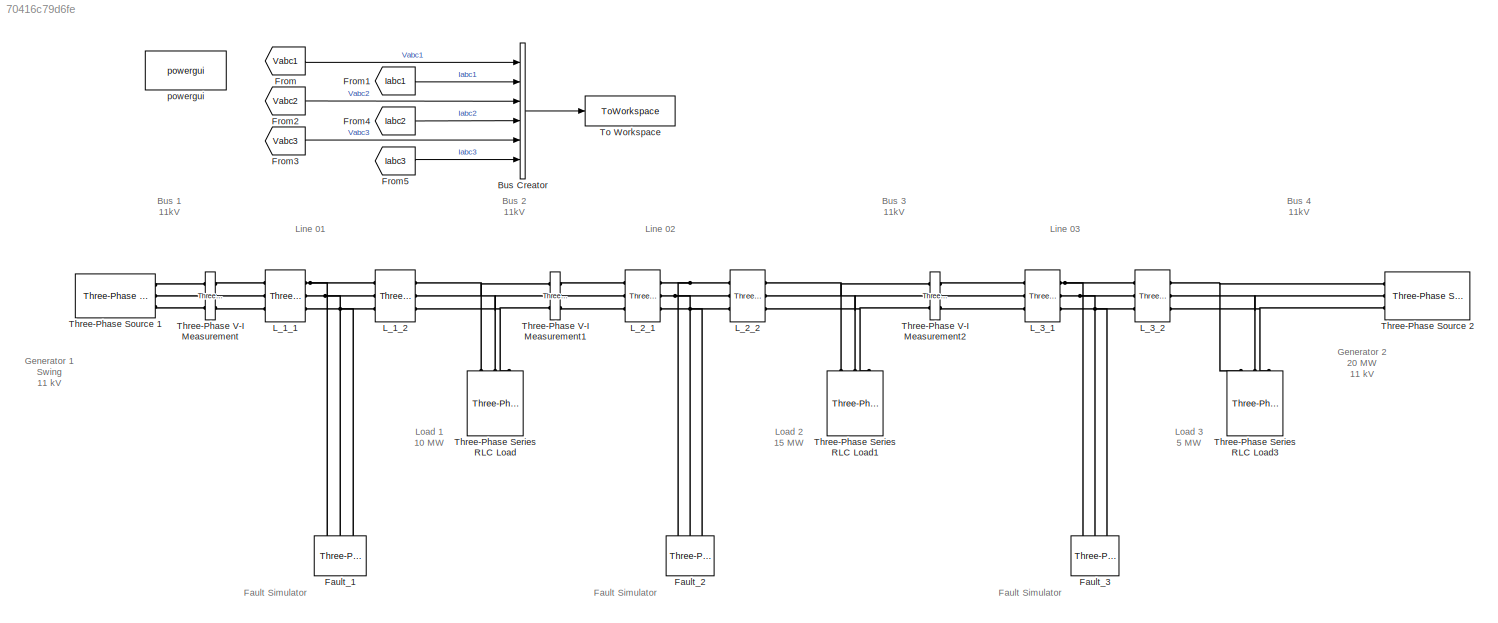
MODEL slx_70416c79d6fe
KIND model
CONFIG AbsTol = auto
CONFIG EnableMultiTasking = off
CONFIG FixedStep = auto
CONFIG MaxStep = auto
CONFIG MinStep = auto
CONFIG RelTol = 1e-3
CONFIG SampleTimeConstraint = Unconstrained
CONFIG SolverName = VariableStepAuto
CONFIG StartTime = 0.0
CONFIG StopTime = 0.7
BLOCK [BusCreator] Bus Creator
  DisplayOption = bar
  InheritFromInputs = on
  Inputs = Vabc1,Iabc1,Vabc2,Iabc2,Vabc3,Iabc3
  Ports = [6, 1]
BLOCK [Reference] Fault_1  REF=spsThreePhaseFaultLib/Three-Phase Fault
  NameLocation = left
  Ports = [0, 0, 0, 0, 0, 3]
  SourceBlock = spsThreePhaseFaultLib/Three-Phase Fault
  SourceProductBaseCode = PS
  SourceType = Three-Phase Fault
BLOCK [Reference] Fault_2  REF=spsThreePhaseFaultLib/Three-Phase Fault
  NameLocation = left
  Ports = [0, 0, 0, 0, 0, 3]
  SourceBlock = spsThreePhaseFaultLib/Three-Phase Fault
  SourceProductBaseCode = PS
  SourceType = Three-Phase Fault
BLOCK [Reference] Fault_3  REF=spsThreePhaseFaultLib/Three-Phase Fault
  NameLocation = left
  Ports = [0, 0, 0, 0, 0, 3]
  SourceBlock = spsThreePhaseFaultLib/Three-Phase Fault
  SourceProductBaseCode = PS
  SourceType = Three-Phase Fault
BLOCK [From] From
  GotoTag = Vabc1
  TagVisibility = global
BLOCK [From] From1
  GotoTag = Iabc1
  TagVisibility = global
BLOCK [From] From2
  GotoTag = Vabc2
  TagVisibility = global
BLOCK [From] From3
  GotoTag = Vabc3
  TagVisibility = global
BLOCK [From] From4
  GotoTag = Iabc2
  TagVisibility = global
BLOCK [From] From5
  GotoTag = Iabc3
  TagVisibility = global
BLOCK [Reference] L_1_1  REF=spsThreePhasePISectionLineLib/Three-Phase
PI Section Line
  AttributesFormatString = \n
  Ports = [0, 0, 0, 0, 0, 3, 3]
  SourceBlock = spsThreePhasePISectionLineLib/Three-Phase\nPI Section Line
  SourceProductBaseCode = PS
  SourceType = Three-Phase PI Section Line
BLOCK [Reference] L_1_2  REF=spsThreePhasePISectionLineLib/Three-Phase
PI Section Line
  AttributesFormatString = \n
  Ports = [0, 0, 0, 0, 0, 3, 3]
  SourceBlock = spsThreePhasePISectionLineLib/Three-Phase\nPI Section Line
  SourceProductBaseCode = PS
  SourceType = Three-Phase PI Section Line
BLOCK [Reference] L_2_1  REF=spsThreePhasePISectionLineLib/Three-Phase
PI Section Line
  AttributesFormatString = \n
  Ports = [0, 0, 0, 0, 0, 3, 3]
  SourceBlock = spsThreePhasePISectionLineLib/Three-Phase\nPI Section Line
  SourceProductBaseCode = PS
  SourceType = Three-Phase PI Section Line
BLOCK [Reference] L_2_2  REF=spsThreePhasePISectionLineLib/Three-Phase
PI Section Line
  AttributesFormatString = \n
  Ports = [0, 0, 0, 0, 0, 3, 3]
  SourceBlock = spsThreePhasePISectionLineLib/Three-Phase\nPI Section Line
  SourceProductBaseCode = PS
  SourceType = Three-Phase PI Section Line
BLOCK [Reference] L_3_1  REF=spsThreePhasePISectionLineLib/Three-Phase
PI Section Line
  AttributesFormatString = \n
  Ports = [0, 0, 0, 0, 0, 3, 3]
  SourceBlock = spsThreePhasePISectionLineLib/Three-Phase\nPI Section Line
  SourceProductBaseCode = PS
  SourceType = Three-Phase PI Section Line
BLOCK [Reference] L_3_2  REF=spsThreePhasePISectionLineLib/Three-Phase
PI Section Line
  AttributesFormatString = \n
  Ports = [0, 0, 0, 0, 0, 3, 3]
  SourceBlock = spsThreePhasePISectionLineLib/Three-Phase\nPI Section Line
  SourceProductBaseCode = PS
  SourceType = Three-Phase PI Section Line
BLOCK [Reference] Three-Phase Series RLC Load  REF=spsThreePhaseSeriesRLCLoadLib/Three-Phase
Series RLC Load
  AttributesFormatString = \n
  NameLocation = right
  Ports = [0, 0, 0, 0, 0, 3]
  SourceBlock = spsThreePhaseSeriesRLCLoadLib/Three-Phase\nSeries RLC Load
  SourceProductBaseCode = PS
  SourceType = Three-Phase Series RLC Load
BLOCK [Reference] Three-Phase Series RLC Load1  REF=spsThreePhaseSeriesRLCLoadLib/Three-Phase
Series RLC Load
  AttributesFormatString = \n
  NameLocation = right
  Ports = [0, 0, 0, 0, 0, 3]
  SourceBlock = spsThreePhaseSeriesRLCLoadLib/Three-Phase\nSeries RLC Load
  SourceProductBaseCode = PS
  SourceType = Three-Phase Series RLC Load
BLOCK [Reference] Three-Phase Series RLC Load3  REF=spsThreePhaseSeriesRLCLoadLib/Three-Phase
Series RLC Load
  AttributesFormatString = \n
  NameLocation = right
  Ports = [0, 0, 0, 0, 0, 3]
  SourceBlock = spsThreePhaseSeriesRLCLoadLib/Three-Phase\nSeries RLC Load
  SourceProductBaseCode = PS
  SourceType = Three-Phase Series RLC Load
BLOCK [Reference] Three-Phase Source 1  REF=spsThreePhaseSourceLib/Three-Phase Source
  Ports = [0, 0, 0, 0, 0, 0, 3]
  SourceBlock = spsThreePhaseSourceLib/Three-Phase Source
  SourceProductBaseCode = PS
  SourceType = Three-Phase Source
BLOCK [Reference] Three-Phase Source 2  REF=spsThreePhaseSourceLib/Three-Phase Source
  NameLocation = top
  Ports = [0, 0, 0, 0, 0, 0, 3]
  SourceBlock = spsThreePhaseSourceLib/Three-Phase Source
  SourceProductBaseCode = PS
  SourceType = Three-Phase Source
BLOCK [Reference] Three-Phase V-I Measurement  REF=spsThreePhaseVIMeasurementLib/Three-Phase
V-I Measurement
  Ports = [0, 0, 0, 0, 0, 3, 3]
  SourceBlock = spsThreePhaseVIMeasurementLib/Three-Phase\nV-I Measurement
  SourceProductBaseCode = PS
  SourceType = Three-Phase VI Measurement
BLOCK [Reference] Three-Phase V-I Measurement1  REF=spsThreePhaseVIMeasurementLib/Three-Phase
V-I Measurement
  Ports = [0, 0, 0, 0, 0, 3, 3]
  SourceBlock = spsThreePhaseVIMeasurementLib/Three-Phase\nV-I Measurement
  SourceProductBaseCode = PS
  SourceType = Three-Phase VI Measurement
BLOCK [Reference] Three-Phase V-I Measurement2  REF=spsThreePhaseVIMeasurementLib/Three-Phase
V-I Measurement
  Ports = [0, 0, 0, 0, 0, 3, 3]
  SourceBlock = spsThreePhaseVIMeasurementLib/Three-Phase\nV-I Measurement
  SourceProductBaseCode = PS
  SourceType = Three-Phase VI Measurement
BLOCK [ToWorkspace] To Workspace
  FixptAsFi = on
  MaxDataPoints = inf
  Ports = [1]
  SampleTime = -1
  SaveFormat = Timeseries
  VariableName = data
BLOCK [Reference] powergui  REF=spspowerguiLib/powergui
  Ports = []
  Priority = 1
  SourceBlock = spspowerguiLib/powergui
  SourceProductBaseCode = PS
  SourceType = PSB option menu block
ANNOTATION (root): Bus 1 11kV
ANNOTATION (root): Bus 2 11kV
ANNOTATION (root): Bus 3 11kV
ANNOTATION (root): Bus 4 11kV
ANNOTATION (root): Generator 1 Swing 11 kV
ANNOTATION (root): Generator 2 20 MW 11 kV
ANNOTATION (root): Load 1 10 MW
ANNOTATION (root): Load 2 15 MW
ANNOTATION (root): Load 3 5 MW
ANNOTATION (root): Fault Simulator
ANNOTATION (root): Line 02
ANNOTATION (root): Line 03
ANNOTATION (root): Line 01
LINE Bus Creator:1 -> To Workspace:1
LINE From1:1 -> Bus Creator:2
LINE From2:1 -> Bus Creator:3
LINE From3:1 -> Bus Creator:5
LINE From4:1 -> Bus Creator:4
LINE From5:1 -> Bus Creator:6
LINE From:1 -> Bus Creator:1
PNET net1: Fault_1:LConn1 -- L_1_1:RConn1 -- L_1_2:LConn1
PNET net2: Fault_1:LConn2 -- L_1_1:RConn2 -- L_1_2:LConn2
PNET net3: Fault_1:LConn3 -- L_1_1:RConn3 -- L_1_2:LConn3
PNET net4: Fault_2:LConn1 -- L_2_1:RConn1 -- L_2_2:LConn1
PNET net5: Fault_2:LConn2 -- L_2_1:RConn2 -- L_2_2:LConn2
PNET net6: Fault_2:LConn3 -- L_2_1:RConn3 -- L_2_2:LConn3
PNET net7: Fault_3:LConn1 -- L_3_1:RConn1 -- L_3_2:LConn1
PNET net8: Fault_3:LConn2 -- L_3_1:RConn2 -- L_3_2:LConn2
PNET net9: Fault_3:LConn3 -- L_3_1:RConn3 -- L_3_2:LConn3
PLINE L_1_1:LConn1 -- Three-Phase V-I Measurement:RConn1
PLINE L_1_1:LConn2 -- Three-Phase V-I Measurement:RConn2
PLINE L_1_1:LConn3 -- Three-Phase V-I Measurement:RConn3
PNET net10: L_1_2:RConn1 -- Three-Phase Series RLC Load:LConn1 -- Three-Phase V-I Measurement1:LConn1
PNET net11: L_1_2:RConn2 -- Three-Phase Series RLC Load:LConn2 -- Three-Phase V-I Measurement1:LConn2
PNET net12: L_1_2:RConn3 -- Three-Phase Series RLC Load:LConn3 -- Three-Phase V-I Measurement1:LConn3
PLINE L_2_1:LConn1 -- Three-Phase V-I Measurement1:RConn1
PLINE L_2_1:LConn2 -- Three-Phase V-I Measurement1:RConn2
PLINE L_2_1:LConn3 -- Three-Phase V-I Measurement1:RConn3
PNET net13: L_2_2:RConn1 -- Three-Phase Series RLC Load1:LConn1 -- Three-Phase V-I Measurement2:LConn1
PNET net14: L_2_2:RConn2 -- Three-Phase Series RLC Load1:LConn2 -- Three-Phase V-I Measurement2:LConn2
PNET net15: L_2_2:RConn3 -- Three-Phase Series RLC Load1:LConn3 -- Three-Phase V-I Measurement2:LConn3
PLINE L_3_1:LConn1 -- Three-Phase V-I Measurement2:RConn1
PLINE L_3_1:LConn2 -- Three-Phase V-I Measurement2:RConn2
PLINE L_3_1:LConn3 -- Three-Phase V-I Measurement2:RConn3
PNET net16: L_3_2:RConn1 -- Three-Phase Series RLC Load3:LConn1 -- Three-Phase Source 2:RConn1
PNET net17: L_3_2:RConn2 -- Three-Phase Series RLC Load3:LConn2 -- Three-Phase Source 2:RConn2
PNET net18: L_3_2:RConn3 -- Three-Phase Series RLC Load3:LConn3 -- Three-Phase Source 2:RConn3
PLINE Three-Phase Source 1:RConn1 -- Three-Phase V-I Measurement:LConn1
PLINE Three-Phase Source 1:RConn2 -- Three-Phase V-I Measurement:LConn2
PLINE Three-Phase Source 1:RConn3 -- Three-Phase V-I Measurement:LConn3
note: PNET lines group multi-terminal physical nets as a canonical sorted terminal list (undirected conserving connections); 2-terminal nets keep the pairwise PLINE form
